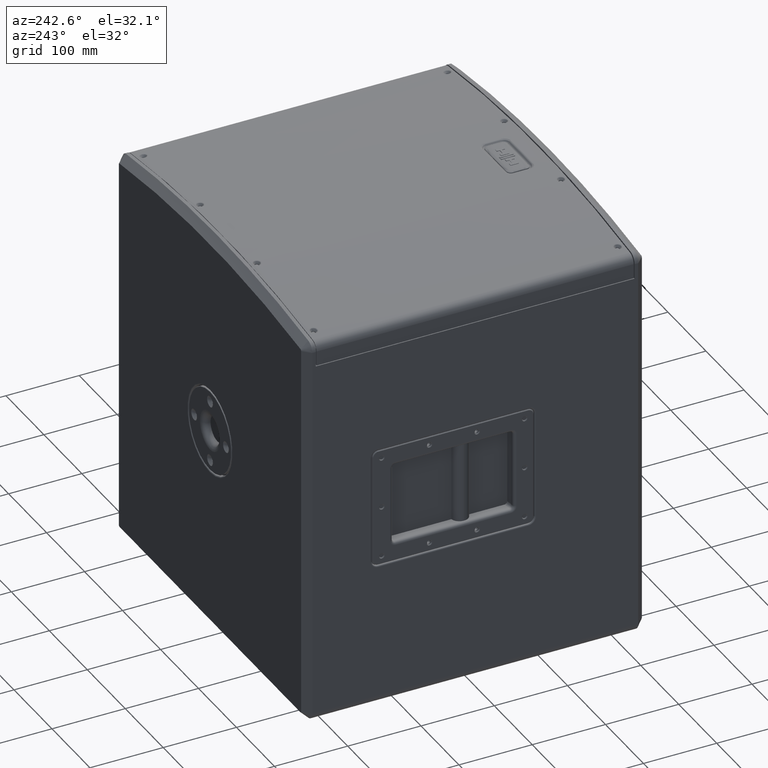
[diagram: clean part render]
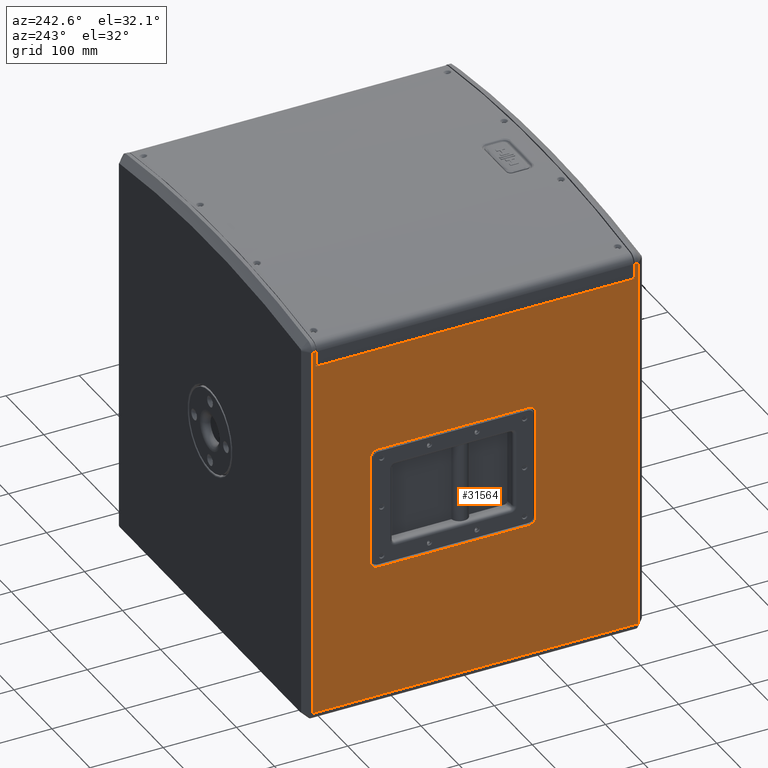
[diagram: same view with one face highlighted and labeled with its STEP entity id]
A machine part, auxiliary view. The second image highlights one B-rep face of the part: STEP entity #31564.
In plain terms, the highlighted planar face has unit normal (1, 0, -0).
Its self-contained STEP definition (entity closure, byte-faithful):
#115 = CARTESIAN_POINT ( 'NONE',  ( -250.0000000000000000, -82.99999999999995737, 74.00000000000001421 ) ) ;
#400 = EDGE_CURVE ( 'NONE', #28414, #4717, #4555, .T. ) ;
#427 = CIRCLE ( 'NONE', #38526, 10.49999999999998224 ) ;
#468 = CARTESIAN_POINT ( 'NONE',  ( -250.0000000000000000, 222.5000000000000284, 247.6439429288581664 ) ) ;
#623 = FACE_OUTER_BOUND ( 'NONE', #1804, .T. ) ;
#1296 = CARTESIAN_POINT ( 'NONE',  ( -250.0000000000000000, 232.5000000000000284, -84.49999999999995737 ) ) ;
#1675 = EDGE_CURVE ( 'NONE', #38165, #11540, #1862, .T. ) ;
#1804 = EDGE_LOOP ( 'NONE', ( #21681, #15034, #39989, #5403, #31621, #23497, #27784, #31783 ) ) ;
#1862 = LINE ( 'NONE', #18091, #19483 ) ;
#1927 = EDGE_CURVE ( 'NONE', #33496, #20397, #33772, .T. ) ;
#2115 = EDGE_CURVE ( 'NONE', #29795, #27394, #5848, .T. ) ;
#3232 = VERTEX_POINT ( 'NONE', #38929 ) ;
#3362 = LINE ( 'NONE', #35556, #33050 ) ;
#4042 = VECTOR ( 'NONE', #29352, 1000.000000000000000 ) ;
#4079 = CARTESIAN_POINT ( 'NONE',  ( -250.0000000000000000, 217.5000000000000284, 280.0000000000000568 ) ) ;
#4107 = CARTESIAN_POINT ( 'NONE',  ( -250.0000000000000000, 217.5000000000000284, 247.6439429288581664 ) ) ;
#4554 = DIRECTION ( 'NONE',  ( 0.0000000000000000000, 0.0000000000000000000, -1.000000000000000000 ) ) ;
#4555 = LINE ( 'NONE', #8400, #6961 ) ;
#4686 = VECTOR ( 'NONE', #23494, 1000.000000000000000 ) ;
#4717 = VERTEX_POINT ( 'NONE', #12391 ) ;
#4751 = DIRECTION ( 'NONE',  ( 1.000000000000000000, 0.0000000000000000000, -0.0000000000000000000 ) ) ;
#4845 = VECTOR ( 'NONE', #36545, 1000.000000000000000 ) ;
#4909 = ORIENTED_EDGE ( 'NONE', *, *, #19712, .T. ) ;
#4998 = CARTESIAN_POINT ( 'NONE',  ( -250.0000000000000000, 132.4999999999999716, -74.00000000000001421 ) ) ;
#5403 = ORIENTED_EDGE ( 'NONE', *, *, #27743, .F. ) ;
#5832 = LINE ( 'NONE', #22474, #19608 ) ;
#5848 = LINE ( 'NONE', #15689, #6570 ) ;
#6570 = VECTOR ( 'NONE', #28649, 1000.000000000000000 ) ;
#6860 = DIRECTION ( 'NONE',  ( 1.000000000000000000, 0.0000000000000000000, -0.0000000000000000000 ) ) ;
#6961 = VECTOR ( 'NONE', #21399, 1000.000000000000000 ) ;
#7254 = DIRECTION ( 'NONE',  ( 1.000000000000000000, 0.0000000000000000000, -0.0000000000000000000 ) ) ;
#7566 = CARTESIAN_POINT ( 'NONE',  ( -250.0000000000000000, 132.4999999999999716, 74.00000000000001421 ) ) ;
#8042 = DIRECTION ( 'NONE',  ( 0.0000000000000000000, 0.0000000000000000000, -1.000000000000000000 ) ) ;
#8165 = VERTEX_POINT ( 'NONE', #17622 ) ;
#8400 = CARTESIAN_POINT ( 'NONE',  ( -250.0000000000000000, 232.5000000000000000, 227.0937156176310623 ) ) ;
#8842 = CARTESIAN_POINT ( 'NONE',  ( -250.0000000000000000, -222.5000000000000568, 280.0000000000000568 ) ) ;
#9619 = EDGE_CURVE ( 'NONE', #3232, #32169, #27609, .T. ) ;
#10544 = CARTESIAN_POINT ( 'NONE',  ( -250.0000000000000000, 142.9999999999999716, 280.0000000000000568 ) ) ;
#10994 = DIRECTION ( 'NONE',  ( 1.000000000000000000, 0.0000000000000000000, -0.0000000000000000000 ) ) ;
#11169 = CARTESIAN_POINT ( 'NONE',  ( -250.0000000000000000, 142.9999999999999716, 74.00000000000001421 ) ) ;
#11177 = EDGE_CURVE ( 'NONE', #29092, #38165, #427, .T. ) ;
#11540 = VERTEX_POINT ( 'NONE', #41078 ) ;
#12391 = CARTESIAN_POINT ( 'NONE',  ( -250.0000000000000000, -217.5000000000000284, 227.0937156176310623 ) ) ;
#12528 = EDGE_CURVE ( 'NONE', #27394, #16845, #40721, .T. ) ;
#12845 = CARTESIAN_POINT ( 'NONE',  ( -250.0000000000000000, 217.5000000000000284, 227.0937156176310623 ) ) ;
#13165 = CARTESIAN_POINT ( 'NONE',  ( -250.0000000000000000, 132.4999999999999716, 84.49999999999998579 ) ) ;
#13431 = DIRECTION ( 'NONE',  ( -0.0000000000000000000, 0.0000000000000000000, -1.000000000000000000 ) ) ;
#13457 = CARTESIAN_POINT ( 'NONE',  ( -250.0000000000000000, -72.49999999999998579, 74.00000000000001421 ) ) ;
#13666 = ORIENTED_EDGE ( 'NONE', *, *, #20366, .T. ) ;
#13706 = DIRECTION ( 'NONE',  ( 0.0000000000000000000, 0.0000000000000000000, -1.000000000000000000 ) ) ;
#14090 = DIRECTION ( 'NONE',  ( 0.0000000000000000000, 0.0000000000000000000, -1.000000000000000000 ) ) ;
#14254 = ORIENTED_EDGE ( 'NONE', *, *, #22733, .T. ) ;
#14626 = DIRECTION ( 'NONE',  ( 0.0000000000000000000, 0.0000000000000000000, -1.000000000000000000 ) ) ;
#15034 = ORIENTED_EDGE ( 'NONE', *, *, #9619, .T. ) ;
#15293 = EDGE_CURVE ( 'NONE', #29795, #28414, #39256, .T. ) ;
#15547 = CIRCLE ( 'NONE', #16225, 10.49999999999998224 ) ;
#15689 = CARTESIAN_POINT ( 'NONE',  ( -250.0000000000000000, 232.5000000000000000, 247.6439429288581664 ) ) ;
#15892 = DIRECTION ( 'NONE',  ( 0.0000000000000000000, 1.000000000000000000, 0.0000000000000000000 ) ) ;
#16225 = AXIS2_PLACEMENT_3D ( 'NONE', #13457, #6860, #14090 ) ;
#16651 = ORIENTED_EDGE ( 'NONE', *, *, #1675, .T. ) ;
#16658 = FACE_BOUND ( 'NONE', #41406, .T. ) ;
#16845 = VERTEX_POINT ( 'NONE', #32669 ) ;
#17517 = AXIS2_PLACEMENT_3D ( 'NONE', #37626, #24443, #8042 ) ;
#17567 = VERTEX_POINT ( 'NONE', #41729 ) ;
#17622 = CARTESIAN_POINT ( 'NONE',  ( -250.0000000000000000, -217.5000000000000568, 247.6439429288581664 ) ) ;
#17696 = AXIS2_PLACEMENT_3D ( 'NONE', #36426, #7254, #13431 ) ;
#17955 = VECTOR ( 'NONE', #13706, 1000.000000000000000 ) ;
#17968 = VECTOR ( 'NONE', #40604, 1000.000000000000000 ) ;
#18070 = EDGE_CURVE ( 'NONE', #11540, #22524, #15547, .T. ) ;
#18091 = CARTESIAN_POINT ( 'NONE',  ( -250.0000000000000000, 232.5000000000000000, 84.49999999999998579 ) ) ;
#18222 = CARTESIAN_POINT ( 'NONE',  ( -250.0000000000000000, -222.5000000000000568, 247.6439429288581664 ) ) ;
#18590 = CARTESIAN_POINT ( 'NONE',  ( -250.0000000000000000, 222.5000000000000000, 280.0000000000000568 ) ) ;
#18599 = ORIENTED_EDGE ( 'NONE', *, *, #41172, .T. ) ;
#18919 = ORIENTED_EDGE ( 'NONE', *, *, #18070, .T. ) ;
#19483 = VECTOR ( 'NONE', #40640, 1000.000000000000000 ) ;
#19608 = VECTOR ( 'NONE', #15892, 1000.000000000000000 ) ;
#19712 = EDGE_CURVE ( 'NONE', #20397, #29092, #26733, .T. ) ;
#20240 = ORIENTED_EDGE ( 'NONE', *, *, #1927, .T. ) ;
#20247 = PLANE ( 'NONE',  #17696 ) ;
#20366 = EDGE_CURVE ( 'NONE', #17567, #36770, #35863, .T. ) ;
#20397 = VERTEX_POINT ( 'NONE', #21661 ) ;
#20407 = VECTOR ( 'NONE', #33418, 1000.000000000000000 ) ;
#20446 = CARTESIAN_POINT ( 'NONE',  ( -250.0000000000000000, 232.5000000000000000, -267.9999999999999432 ) ) ;
#21399 = DIRECTION ( 'NONE',  ( 0.0000000000000000000, -1.000000000000000000, 0.0000000000000000000 ) ) ;
#21661 = CARTESIAN_POINT ( 'NONE',  ( -250.0000000000000000, 142.9999999999999716, -74.00000000000001421 ) ) ;
#21681 = ORIENTED_EDGE ( 'NONE', *, *, #30863, .T. ) ;
#21760 = EDGE_CURVE ( 'NONE', #32169, #8165, #5832, .T. ) ;
#22118 = CARTESIAN_POINT ( 'NONE',  ( -250.0000000000000000, -217.5000000000000568, 280.0000000000000568 ) ) ;
#22474 = CARTESIAN_POINT ( 'NONE',  ( -250.0000000000000000, 232.5000000000000000, 247.6439429288581664 ) ) ;
#22524 = VERTEX_POINT ( 'NONE', #115 ) ;
#22733 = EDGE_CURVE ( 'NONE', #36770, #33496, #33251, .T. ) ;
#23494 = DIRECTION ( 'NONE',  ( -0.0000000000000000000, 1.000000000000000000, 6.769652589177784865E-17 ) ) ;
#23497 = ORIENTED_EDGE ( 'NONE', *, *, #15293, .F. ) ;
#24289 = CARTESIAN_POINT ( 'NONE',  ( -250.0000000000000000, 132.4999999999999716, -84.49999999999998579 ) ) ;
#24443 = DIRECTION ( 'NONE',  ( 1.000000000000000000, 0.0000000000000000000, -0.0000000000000000000 ) ) ;
#24548 = DIRECTION ( 'NONE',  ( 0.0000000000000000000, 0.0000000000000000000, -1.000000000000000000 ) ) ;
#25767 = ORIENTED_EDGE ( 'NONE', *, *, #11177, .T. ) ;
#25948 = LINE ( 'NONE', #22118, #4042 ) ;
#26733 = LINE ( 'NONE', #10544, #4845 ) ;
#26951 = AXIS2_PLACEMENT_3D ( 'NONE', #4998, #10994, #14626 ) ;
#27394 = VERTEX_POINT ( 'NONE', #468 ) ;
#27609 = LINE ( 'NONE', #8842, #17968 ) ;
#27743 = EDGE_CURVE ( 'NONE', #4717, #8165, #25948, .T. ) ;
#27776 = VECTOR ( 'NONE', #24548, 1000.000000000000000 ) ;
#27784 = ORIENTED_EDGE ( 'NONE', *, *, #2115, .T. ) ;
#28414 = VERTEX_POINT ( 'NONE', #12845 ) ;
#28649 = DIRECTION ( 'NONE',  ( 0.0000000000000000000, 1.000000000000000000, 0.0000000000000000000 ) ) ;
#29092 = VERTEX_POINT ( 'NONE', #11169 ) ;
#29352 = DIRECTION ( 'NONE',  ( 0.0000000000000000000, -0.0000000000000000000, 1.000000000000000000 ) ) ;
#29795 = VERTEX_POINT ( 'NONE', #4107 ) ;
#30863 = EDGE_CURVE ( 'NONE', #16845, #3232, #33208, .T. ) ;
#31564 = ADVANCED_FACE ( 'NONE', ( #16658, #623 ), #20247, .F. ) ;
#31621 = ORIENTED_EDGE ( 'NONE', *, *, #400, .F. ) ;
#31783 = ORIENTED_EDGE ( 'NONE', *, *, #12528, .T. ) ;
#31941 = DIRECTION ( 'NONE',  ( -0.0000000000000000000, -9.376883653928684898E-17, -1.000000000000000000 ) ) ;
#32169 = VERTEX_POINT ( 'NONE', #18222 ) ;
#32216 = CARTESIAN_POINT ( 'NONE',  ( -250.0000000000000000, -72.49999999999998579, -84.50000000000000000 ) ) ;
#32669 = CARTESIAN_POINT ( 'NONE',  ( -250.0000000000000000, 222.5000000000000000, -267.9999999999999432 ) ) ;
#33050 = VECTOR ( 'NONE', #31941, 1000.000000000000000 ) ;
#33208 = LINE ( 'NONE', #20446, #20407 ) ;
#33251 = LINE ( 'NONE', #1296, #4686 ) ;
#33418 = DIRECTION ( 'NONE',  ( 0.0000000000000000000, -1.000000000000000000, 0.0000000000000000000 ) ) ;
#33496 = VERTEX_POINT ( 'NONE', #24289 ) ;
#33772 = CIRCLE ( 'NONE', #26951, 10.49999999999998224 ) ;
#35556 = CARTESIAN_POINT ( 'NONE',  ( -250.0000000000000000, -82.99999999999992895, 280.0000000000001137 ) ) ;
#35863 = CIRCLE ( 'NONE', #17517, 10.49999999999999467 ) ;
#36426 = CARTESIAN_POINT ( 'NONE',  ( -250.0000000000000000, 232.5000000000000000, 280.0000000000000568 ) ) ;
#36545 = DIRECTION ( 'NONE',  ( -0.0000000000000000000, -0.0000000000000000000, 1.000000000000000000 ) ) ;
#36770 = VERTEX_POINT ( 'NONE', #32216 ) ;
#37626 = CARTESIAN_POINT ( 'NONE',  ( -250.0000000000000000, -72.49999999999998579, -74.00000000000001421 ) ) ;
#38165 = VERTEX_POINT ( 'NONE', #13165 ) ;
#38526 = AXIS2_PLACEMENT_3D ( 'NONE', #7566, #4751, #4554 ) ;
#38929 = CARTESIAN_POINT ( 'NONE',  ( -250.0000000000000000, -222.5000000000000568, -267.9999999999999432 ) ) ;
#39256 = LINE ( 'NONE', #4079, #17955 ) ;
#39989 = ORIENTED_EDGE ( 'NONE', *, *, #21760, .T. ) ;
#40604 = DIRECTION ( 'NONE',  ( 0.0000000000000000000, 0.0000000000000000000, 1.000000000000000000 ) ) ;
#40640 = DIRECTION ( 'NONE',  ( -0.0000000000000000000, -1.000000000000000000, -0.0000000000000000000 ) ) ;
#40721 = LINE ( 'NONE', #18590, #27776 ) ;
#41078 = CARTESIAN_POINT ( 'NONE',  ( -250.0000000000000000, -72.49999999999998579, 84.49999999999998579 ) ) ;
#41172 = EDGE_CURVE ( 'NONE', #22524, #17567, #3362, .T. ) ;
#41406 = EDGE_LOOP ( 'NONE', ( #14254, #20240, #4909, #25767, #16651, #18919, #18599, #13666 ) ) ;
#41729 = CARTESIAN_POINT ( 'NONE',  ( -250.0000000000000000, -82.99999999999997158, -74.00000000000001421 ) ) ;